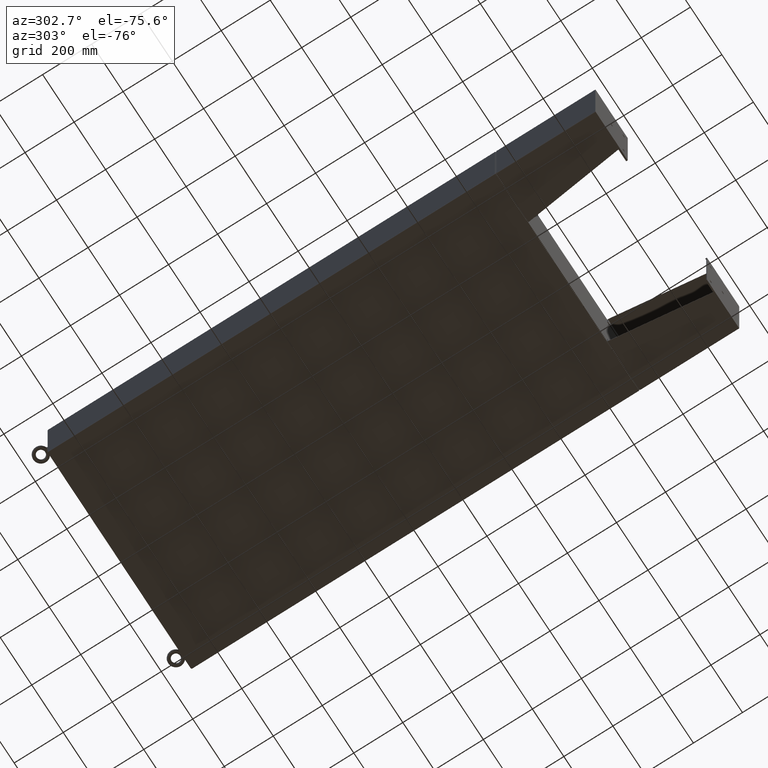
[diagram: clean part render]
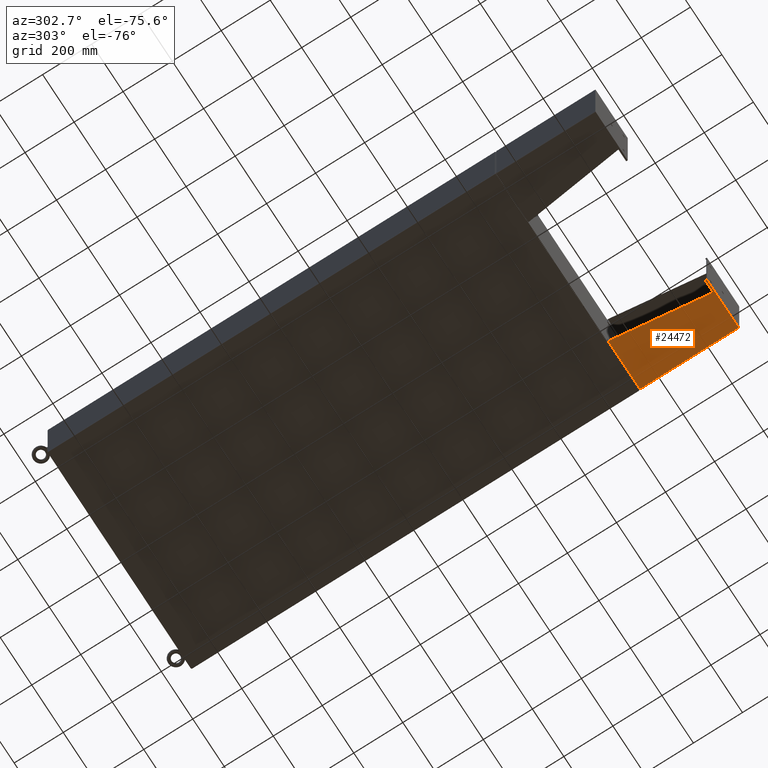
[diagram: same view with one face highlighted and labeled with its STEP entity id]
A machine part, auxiliary view. The second image highlights one B-rep face of the part: STEP entity #24472.
In plain terms, the highlighted planar face has unit normal (-0, 0, 1).
Its self-contained STEP definition (entity closure, byte-faithful):
#172 = CARTESIAN_POINT ( 'NONE',  ( -6.000000000000023100, -7.749999999999999100, 6.052216497445934700 ) ) ;
#946 = CARTESIAN_POINT ( 'NONE',  ( -6.000000000000000900, -7.999999999999999100, 0.03899999999999923000 ) ) ;
#2053 = CARTESIAN_POINT ( 'NONE',  ( -6.000000000000030200, -7.999999999999999100, 8.000999999999999400 ) ) ;
#2593 = VECTOR ( 'NONE', #42713, 39.37007874015748100 ) ;
#5008 = PLANE ( 'NONE',  #21937 ) ;
#5889 = DIRECTION ( 'NONE',  ( 3.550958521948298200E-015, 0.0000000000000000000, -1.000000000000000000 ) ) ;
#9002 = FACE_OUTER_BOUND ( 'NONE', #70828, .T. ) ;
#9103 = LINE ( 'NONE', #37857, #49069 ) ;
#9599 = LINE ( 'NONE', #41184, #66013 ) ;
#10144 = CARTESIAN_POINT ( 'NONE',  ( -6.000000000000016000, 7.857000000000001100, 8.000999999999999400 ) ) ;
#12588 = VERTEX_POINT ( 'NONE', #70254 ) ;
#21937 = AXIS2_PLACEMENT_3D ( 'NONE', #42693, #50079, #42826 ) ;
#22171 = LINE ( 'NONE', #38445, #63974 ) ;
#22920 = CARTESIAN_POINT ( 'NONE',  ( -6.000000000000016000, 7.857000000000001100, 0.03900000000000031900 ) ) ;
#24472 = ADVANCED_FACE ( 'NONE', ( #9002 ), #5008, .F. ) ;
#25146 = EDGE_CURVE ( 'NONE', #29481, #12588, #43772, .T. ) ;
#25249 = CARTESIAN_POINT ( 'NONE',  ( -6.000000000000030200, -7.999999999999999100, 8.000999999999999400 ) ) ;
#25416 = VERTEX_POINT ( 'NONE', #2053 ) ;
#25813 = ORIENTED_EDGE ( 'NONE', *, *, #39104, .T. ) ;
#26026 = EDGE_CURVE ( 'NONE', #67930, #69640, #9599, .T. ) ;
#29426 = VECTOR ( 'NONE', #68056, 39.37007874015748100 ) ;
#29481 = VERTEX_POINT ( 'NONE', #59057 ) ;
#31614 = LINE ( 'NONE', #10144, #2593 ) ;
#33163 = CARTESIAN_POINT ( 'NONE',  ( -6.000000000000030200, -7.750000000000000000, 8.001000000000015400 ) ) ;
#35772 = EDGE_CURVE ( 'NONE', #67930, #25416, #44703, .T. ) ;
#36719 = ORIENTED_EDGE ( 'NONE', *, *, #25146, .T. ) ;
#37857 = CARTESIAN_POINT ( 'NONE',  ( -6.000000000000030200, 8.000000000000001800, 8.000999999999999400 ) ) ;
#38445 = CARTESIAN_POINT ( 'NONE',  ( -6.000000000000030200, -7.750000000000000000, 8.000999999999999400 ) ) ;
#39104 = EDGE_CURVE ( 'NONE', #12588, #69640, #31614, .T. ) ;
#41184 = CARTESIAN_POINT ( 'NONE',  ( -6.000000000000000900, 8.000000000000001800, 0.03899999999999923000 ) ) ;
#41858 = ORIENTED_EDGE ( 'NONE', *, *, #26026, .F. ) ;
#42693 = CARTESIAN_POINT ( 'NONE',  ( -6.000000000000030200, 8.000000000000001800, 8.000999999999999400 ) ) ;
#42713 = DIRECTION ( 'NONE',  ( 0.0000000000000000000, 0.0000000000000000000, -1.000000000000000000 ) ) ;
#42826 = DIRECTION ( 'NONE',  ( 3.550958521948298200E-015, 0.0000000000000000000, -1.000000000000000000 ) ) ;
#43300 = DIRECTION ( 'NONE',  ( 0.0000000000000000000, 1.000000000000000000, 0.0000000000000000000 ) ) ;
#43772 = LINE ( 'NONE', #172, #29426 ) ;
#44703 = LINE ( 'NONE', #25249, #57552 ) ;
#46062 = ORIENTED_EDGE ( 'NONE', *, *, #63044, .T. ) ;
#46409 = VERTEX_POINT ( 'NONE', #33163 ) ;
#48659 = DIRECTION ( 'NONE',  ( 0.0000000000000000000, 1.000000000000000000, 0.0000000000000000000 ) ) ;
#49069 = VECTOR ( 'NONE', #43300, 39.37007874015748100 ) ;
#50079 = DIRECTION ( 'NONE',  ( 1.000000000000000000, 0.0000000000000000000, 3.550958521948298200E-015 ) ) ;
#57552 = VECTOR ( 'NONE', #68962, 39.37007874015748100 ) ;
#59057 = CARTESIAN_POINT ( 'NONE',  ( -6.000000000000022200, -7.750000000000000000, 6.052216497445934700 ) ) ;
#62468 = ORIENTED_EDGE ( 'NONE', *, *, #35772, .T. ) ;
#63044 = EDGE_CURVE ( 'NONE', #46409, #29481, #22171, .T. ) ;
#63974 = VECTOR ( 'NONE', #5889, 39.37007874015748100 ) ;
#66013 = VECTOR ( 'NONE', #48659, 39.37007874015748100 ) ;
#67759 = EDGE_CURVE ( 'NONE', #25416, #46409, #9103, .T. ) ;
#67930 = VERTEX_POINT ( 'NONE', #946 ) ;
#68056 = DIRECTION ( 'NONE',  ( -4.399772607369798900E-016, 0.9922942345449394800, 0.1239038017531047700 ) ) ;
#68962 = DIRECTION ( 'NONE',  ( -3.550958521948298200E-015, 0.0000000000000000000, 1.000000000000000000 ) ) ;
#69399 = ORIENTED_EDGE ( 'NONE', *, *, #67759, .T. ) ;
#69640 = VERTEX_POINT ( 'NONE', #22920 ) ;
#70254 = CARTESIAN_POINT ( 'NONE',  ( -6.000000000000030200, 7.857000000000001100, 8.000999999999999400 ) ) ;
#70828 = EDGE_LOOP ( 'NONE', ( #46062, #36719, #25813, #41858, #62468, #69399 ) ) ;